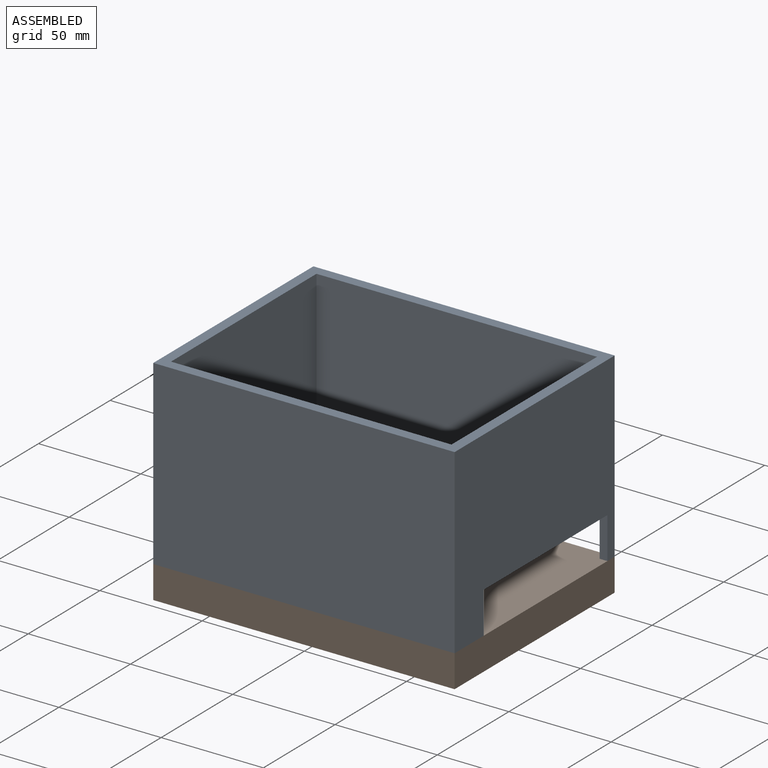
[diagram: assembled view]
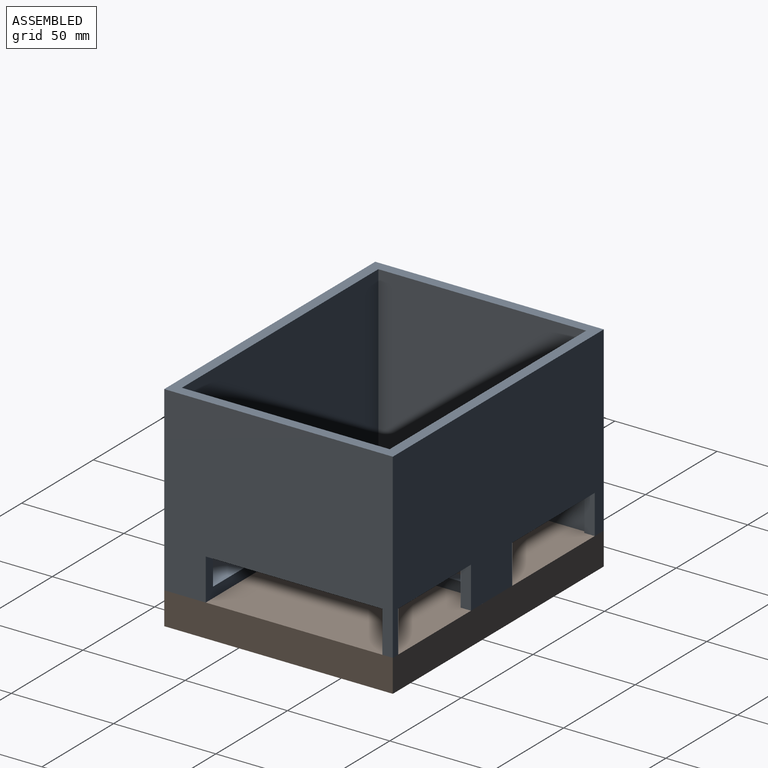
[diagram: assembled view, second angle]
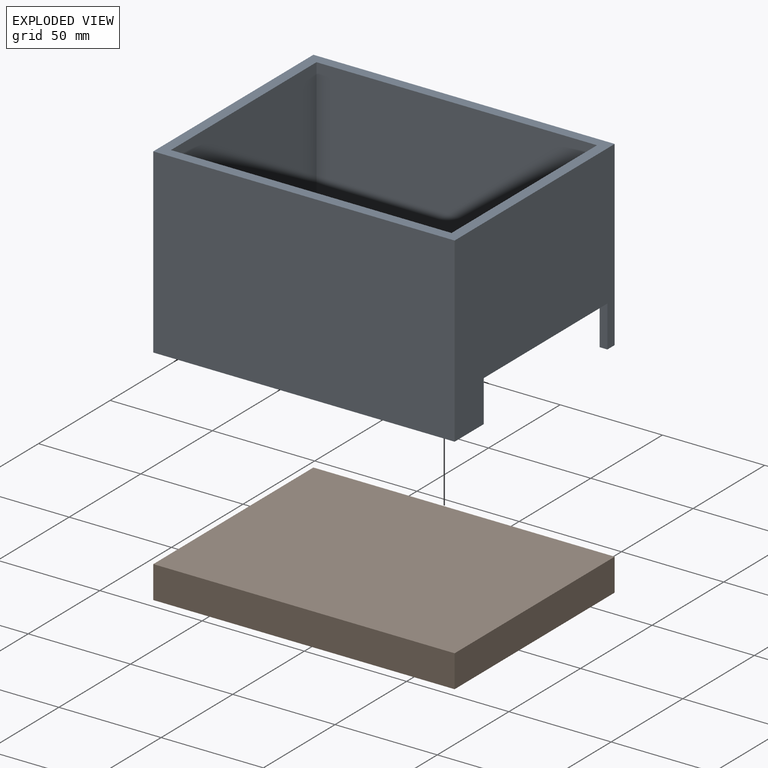
[diagram: exploded view]
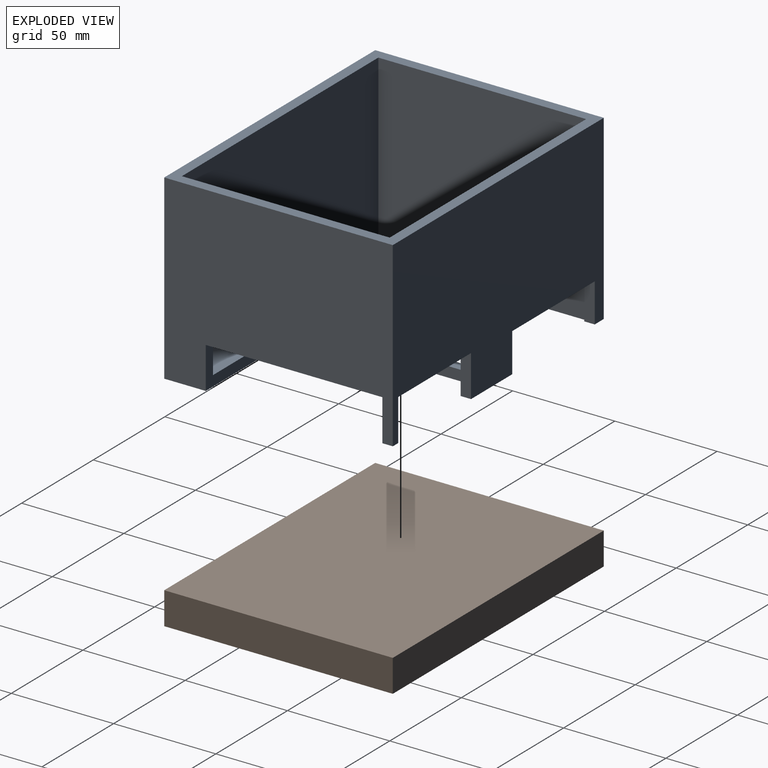
[diagram: exploded view, second angle]
ASSEMBLY  parts=2 mates=2
PART A: 24 faces, bbox 147.3x111.8x88.9 mm
  f0: plane 147.32x88.9mm, normal (0,1,0), area 10966.9mm2, adj f3,f5,f7,f14,f16,f17,f18,f20
  f1: plane 101.6x83.82mm, normal (-1,0,0), area 7199mm2, adj f4,f10,f11,f13,f15,f16,f19,f23
  f2: plane 20.33x3.81mm, normal (0,-1,0), area 77.5mm2, adj f4,f5,f14,f18
  f3: plane 147.32x111.76mm, normal (0,0,-1), area 2965.6mm2, adj f0,f5,f6,f7,f8,f9,f10,f11
  f4: plane 86.36x5.08mm, normal (0,0,-1), area 412.9mm2, adj f1,f2,f5,f15,f18,f19
  f5: plane 111.76x88.9mm, normal (1,0,0), area 8179.9mm2, adj f0,f2,f3,f4,f8,f14,f15,f23
  f6: plane 86.36x5.08mm, normal (1,0,0), area 438.7mm2, adj f3,f11,f13,f15
  f7: plane 111.76x88.9mm, normal (-1,0,0), area 9935.5mm2, adj f0,f3,f8,f23
  f8: plane 147.32x88.9mm, normal (0,-1,0), area 13096.7mm2, adj f3,f5,f7,f23
  f9: plane 101.6x5.08mm, normal (-1,0,0), area 516.1mm2, adj f3,f10,f11,f13
  f10: plane 137.16x88.9mm, normal (0,1,0), area 11858mm2, adj f1,f3,f9,f12,f13,f23
  f11: plane 137.16x88.9mm, normal (0,-1,0), area 10063.7mm2, adj f1,f3,f6,f9,f12,f13,f16,f17
  f12: plane 101.6x88.9mm, normal (1,0,0), area 9032.2mm2, adj f3,f10,f11,f23
  f13: plane 101.6x66.04mm, normal (0,0,1), area 1445.2mm2, adj f1,f6,f9,f10,f11,f15
  f14: plane 5.08x3.81mm, normal (0,0,-1), area 19.4mm2, adj f0,f2,f5,f18
  f15: plane 66.04x20.33mm, normal (0,1,0), area 412.9mm2, adj f1,f3,f4,f5,f6,f13
  f16: plane 50.8x25.4mm, normal (0,0,-1), area 283.9mm2, adj f0,f1,f11,f17,f18,f19
  f17: plane 20.34x5.08mm, normal (1,0,0), area 103.3mm2, adj f0,f3,f11,f16
  f18: plane 25.4x20.34mm, normal (-1,0,0), area 103.6mm2, adj f0,f2,f4,f14,f16,f19
  f19: plane 1.27x0.01mm, normal (0,1,0), area 0mm2, adj f1,f4,f16,f18
  f20: plane 19.05x5.08mm, normal (1,0,0), area 96.8mm2, adj f0,f3,f11,f22
  f21: plane 19.05x5.08mm, normal (-1,0,0), area 96.8mm2, adj f0,f3,f11,f22
  f22: plane 57.56x5.08mm, normal (0,0,-1), area 292.4mm2, adj f0,f11,f20,f21
  f23: plane 147.32x111.76mm, normal (0,0,1), area 2529mm2, adj f0,f1,f5,f7,f8,f10,f11,f12
PART B: 6 faces, bbox 147.3x111.8x15.9 mm
  f0: plane 147.32x15.88mm, normal (0,1,0), area 2338.7mm2, adj f1,f3,f4,f5
  f1: plane 111.76x15.88mm, normal (-1,0,0), area 1774.2mm2, adj f0,f2,f4,f5
  f2: plane 147.32x15.88mm, normal (0,-1,0), area 2338.7mm2, adj f1,f3,f4,f5
  f3: plane 111.76x15.88mm, normal (1,0,0), area 1774.2mm2, adj f0,f2,f4,f5
  f4: plane 147.32x111.76mm, normal (0,0,1), area 16464.5mm2, adj f0,f1,f2,f3
  f5: plane 147.32x111.76mm, normal (0,0,-1), area 16464.5mm2, adj f0,f1,f2,f3
PLACE A t=(-7.51,-63.1,82.47)mm
PLACE B t=(5.3,-70.36,66.59)mm
MATE parallel A.f3 <-> B.f4  axis (0,0,1) through (87.02,-119.33,82.47)mm
MATE fastened B.f2 <-> A.f8  axis (0,-1,0) through (87.02,-119.33,82.47)mm
